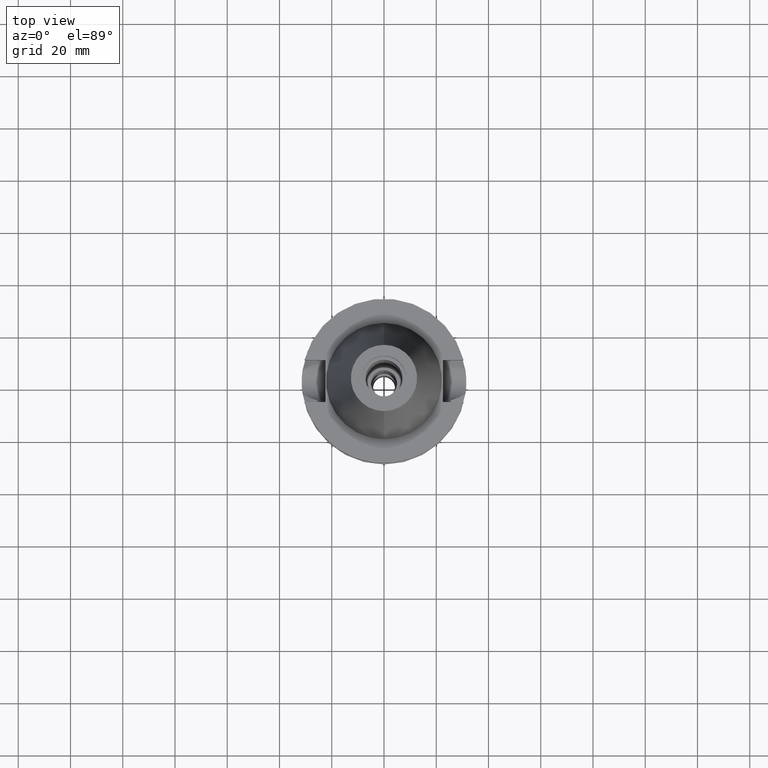
[diagram: clean part render]
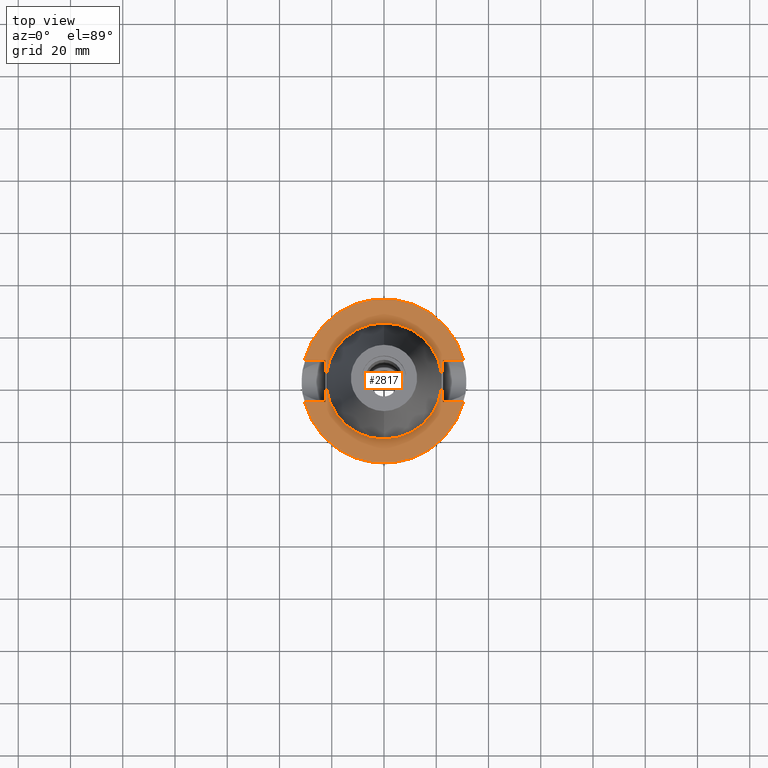
[diagram: same view with one face highlighted and labeled with its STEP entity id]
A machine part, top view. The second image highlights one B-rep face of the part: STEP entity #2817.
In plain terms, the highlighted planar face has unit normal (0, 0, -1).
Its self-contained STEP definition (entity closure, byte-faithful):
#22 = DIRECTION ( 'NONE',  ( 0.0000000000000000000, -1.000000000000000000, 0.0000000000000000000 ) ) ;
#52 = CARTESIAN_POINT ( 'NONE',  ( 0.0000000000000000000, 2.183973869259000036E-14, -1.000000000000000000 ) ) ;
#57 = DIRECTION ( 'NONE',  ( 0.0000000000000000000, 0.0000000000000000000, -1.000000000000000000 ) ) ;
#94 = ORIENTED_EDGE ( 'NONE', *, *, #1338, .F. ) ;
#97 = EDGE_CURVE ( 'NONE', #140, #789, #1294, .T. ) ;
#109 = EDGE_LOOP ( 'NONE', ( #2272, #279, #2647, #744, #805, #94, #2481, #224 ) ) ;
#140 = VERTEX_POINT ( 'NONE', #947 ) ;
#142 = CIRCLE ( 'NONE', #950, 22.22500000000000142 ) ;
#187 = LINE ( 'NONE', #1343, #3080 ) ;
#224 = ORIENTED_EDGE ( 'NONE', *, *, #2904, .F. ) ;
#279 = ORIENTED_EDGE ( 'NONE', *, *, #97, .F. ) ;
#282 = DIRECTION ( 'NONE',  ( 1.000000000000000000, 3.573249715389999860E-14, 0.0000000000000000000 ) ) ;
#297 = ORIENTED_EDGE ( 'NONE', *, *, #2270, .F. ) ;
#384 = DIRECTION ( 'NONE',  ( -1.000000000000000000, 3.550916904668000126E-14, 0.0000000000000000000 ) ) ;
#451 = EDGE_CURVE ( 'NONE', #2427, #2900, #187, .T. ) ;
#462 = CARTESIAN_POINT ( 'NONE',  ( 0.0000000000000000000, 2.183973869259000036E-14, -1.000000000000000000 ) ) ;
#478 = VERTEX_POINT ( 'NONE', #853 ) ;
#490 = DIRECTION ( 'NONE',  ( 0.0000000000000000000, -1.000000000000000000, 0.0000000000000000000 ) ) ;
#522 = CARTESIAN_POINT ( 'NONE',  ( 30.45402272279000044, 8.050000000000000711, -1.000000000000000000 ) ) ;
#542 = CARTESIAN_POINT ( 'NONE',  ( 0.0000000000000000000, 2.183973869259000036E-14, -1.000000000000000000 ) ) ;
#558 = LINE ( 'NONE', #2519, #2860 ) ;
#646 = VERTEX_POINT ( 'NONE', #2140 ) ;
#657 = VECTOR ( 'NONE', #282, 1000.000000000000000 ) ;
#669 = CARTESIAN_POINT ( 'NONE',  ( -22.50000000000000000, 8.050000000000000711, -1.000000000000000000 ) ) ;
#677 = AXIS2_PLACEMENT_3D ( 'NONE', #2634, #1414, #22 ) ;
#711 = CARTESIAN_POINT ( 'NONE',  ( -22.50000000000000000, -8.050000000000000711, -1.000000000000000000 ) ) ;
#739 = VECTOR ( 'NONE', #1238, 1000.000000000000000 ) ;
#744 = ORIENTED_EDGE ( 'NONE', *, *, #2374, .F. ) ;
#789 = VERTEX_POINT ( 'NONE', #2468 ) ;
#805 = ORIENTED_EDGE ( 'NONE', *, *, #451, .T. ) ;
#853 = CARTESIAN_POINT ( 'NONE',  ( 22.50000000000000000, -8.050000000000000711, -1.000000000000000000 ) ) ;
#947 = CARTESIAN_POINT ( 'NONE',  ( 30.45402272279000044, -8.050000000000000711, -1.000000000000000000 ) ) ;
#950 = AXIS2_PLACEMENT_3D ( 'NONE', #542, #2706, #1257 ) ;
#969 = FACE_OUTER_BOUND ( 'NONE', #109, .T. ) ;
#1016 = DIRECTION ( 'NONE',  ( 0.0000000000000000000, 1.000000000000000000, 0.0000000000000000000 ) ) ;
#1069 = DIRECTION ( 'NONE',  ( 0.0000000000000000000, 1.000000000000000000, 0.0000000000000000000 ) ) ;
#1137 = DIRECTION ( 'NONE',  ( 1.000000000000000000, -3.506251283225999947E-14, 0.0000000000000000000 ) ) ;
#1163 = CARTESIAN_POINT ( 'NONE',  ( -22.50000000000000000, 8.050000000000000711, -1.000000000000000000 ) ) ;
#1218 = VERTEX_POINT ( 'NONE', #1697 ) ;
#1231 = CIRCLE ( 'NONE', #677, 22.22500000000000142 ) ;
#1238 = DIRECTION ( 'NONE',  ( 0.0000000000000000000, -1.000000000000000000, 0.0000000000000000000 ) ) ;
#1257 = DIRECTION ( 'NONE',  ( 0.0000000000000000000, 1.000000000000000000, 0.0000000000000000000 ) ) ;
#1294 = CIRCLE ( 'NONE', #1706, 31.50000000000000000 ) ;
#1338 = EDGE_CURVE ( 'NONE', #1735, #2900, #1718, .T. ) ;
#1343 = CARTESIAN_POINT ( 'NONE',  ( 22.50000000000000000, 8.050000000000000711, -1.000000000000000000 ) ) ;
#1414 = DIRECTION ( 'NONE',  ( 0.0000000000000000000, 0.0000000000000000000, 1.000000000000000000 ) ) ;
#1418 = VECTOR ( 'NONE', #1016, 1000.000000000000000 ) ;
#1469 = CARTESIAN_POINT ( 'NONE',  ( 0.0000000000000000000, 1.212400331155999925E-14, -1.000000000000000000 ) ) ;
#1488 = CARTESIAN_POINT ( 'NONE',  ( 22.50000000000000000, 8.050000000000000711, -1.000000000000000000 ) ) ;
#1564 = AXIS2_PLACEMENT_3D ( 'NONE', #52, #2523, #1069 ) ;
#1570 = EDGE_LOOP ( 'NONE', ( #297, #2560 ) ) ;
#1697 = CARTESIAN_POINT ( 'NONE',  ( 0.0000000000000000000, -22.22500000000000142, -1.000000000000000000 ) ) ;
#1706 = AXIS2_PLACEMENT_3D ( 'NONE', #462, #2888, #490 ) ;
#1718 = CIRCLE ( 'NONE', #1564, 31.50000000000000000 ) ;
#1719 = CARTESIAN_POINT ( 'NONE',  ( 22.50000000000000000, -8.050000000000000711, -1.000000000000000000 ) ) ;
#1735 = VERTEX_POINT ( 'NONE', #3130 ) ;
#1983 = FACE_BOUND ( 'NONE', #1570, .T. ) ;
#2037 = VERTEX_POINT ( 'NONE', #1163 ) ;
#2140 = CARTESIAN_POINT ( 'NONE',  ( 0.0000000000000000000, 22.22500000000000142, -1.000000000000000000 ) ) ;
#2183 = CARTESIAN_POINT ( 'NONE',  ( -22.50000000000000000, -8.050000000000000711, -1.000000000000000000 ) ) ;
#2200 = PLANE ( 'NONE',  #2456 ) ;
#2270 = EDGE_CURVE ( 'NONE', #646, #1218, #142, .T. ) ;
#2272 = ORIENTED_EDGE ( 'NONE', *, *, #2407, .T. ) ;
#2374 = EDGE_CURVE ( 'NONE', #2427, #478, #2466, .T. ) ;
#2407 = EDGE_CURVE ( 'NONE', #2663, #789, #558, .T. ) ;
#2427 = VERTEX_POINT ( 'NONE', #2766 ) ;
#2456 = AXIS2_PLACEMENT_3D ( 'NONE', #1469, #57, #2959 ) ;
#2466 = LINE ( 'NONE', #1488, #739 ) ;
#2468 = CARTESIAN_POINT ( 'NONE',  ( -30.45402272279000044, -8.050000000000000711, -1.000000000000000000 ) ) ;
#2481 = ORIENTED_EDGE ( 'NONE', *, *, #2568, .F. ) ;
#2519 = CARTESIAN_POINT ( 'NONE',  ( -22.50000000000000000, -8.050000000000000711, -1.000000000000000000 ) ) ;
#2523 = DIRECTION ( 'NONE',  ( 0.0000000000000000000, 0.0000000000000000000, -1.000000000000000000 ) ) ;
#2560 = ORIENTED_EDGE ( 'NONE', *, *, #2718, .F. ) ;
#2568 = EDGE_CURVE ( 'NONE', #2037, #1735, #2800, .T. ) ;
#2634 = CARTESIAN_POINT ( 'NONE',  ( 0.0000000000000000000, 2.183973869259000036E-14, -1.000000000000000000 ) ) ;
#2647 = ORIENTED_EDGE ( 'NONE', *, *, #2874, .F. ) ;
#2663 = VERTEX_POINT ( 'NONE', #711 ) ;
#2703 = LINE ( 'NONE', #1719, #657 ) ;
#2706 = DIRECTION ( 'NONE',  ( 0.0000000000000000000, 0.0000000000000000000, 1.000000000000000000 ) ) ;
#2718 = EDGE_CURVE ( 'NONE', #1218, #646, #1231, .T. ) ;
#2766 = CARTESIAN_POINT ( 'NONE',  ( 22.50000000000000000, 8.050000000000000711, -1.000000000000000000 ) ) ;
#2800 = LINE ( 'NONE', #669, #2809 ) ;
#2809 = VECTOR ( 'NONE', #3123, 1000.000000000000000 ) ;
#2817 = ADVANCED_FACE ( 'NONE', ( #969, #1983 ), #2200, .F. ) ;
#2860 = VECTOR ( 'NONE', #384, 1000.000000000000000 ) ;
#2874 = EDGE_CURVE ( 'NONE', #478, #140, #2703, .T. ) ;
#2888 = DIRECTION ( 'NONE',  ( 0.0000000000000000000, 0.0000000000000000000, -1.000000000000000000 ) ) ;
#2900 = VERTEX_POINT ( 'NONE', #522 ) ;
#2904 = EDGE_CURVE ( 'NONE', #2663, #2037, #2948, .T. ) ;
#2948 = LINE ( 'NONE', #2183, #1418 ) ;
#2959 = DIRECTION ( 'NONE',  ( 0.0000000000000000000, -1.000000000000000000, 0.0000000000000000000 ) ) ;
#3080 = VECTOR ( 'NONE', #1137, 1000.000000000000000 ) ;
#3123 = DIRECTION ( 'NONE',  ( -1.000000000000000000, -3.550916904668000126E-14, 0.0000000000000000000 ) ) ;
#3130 = CARTESIAN_POINT ( 'NONE',  ( -30.45402272279000044, 8.050000000000000711, -1.000000000000000000 ) ) ;